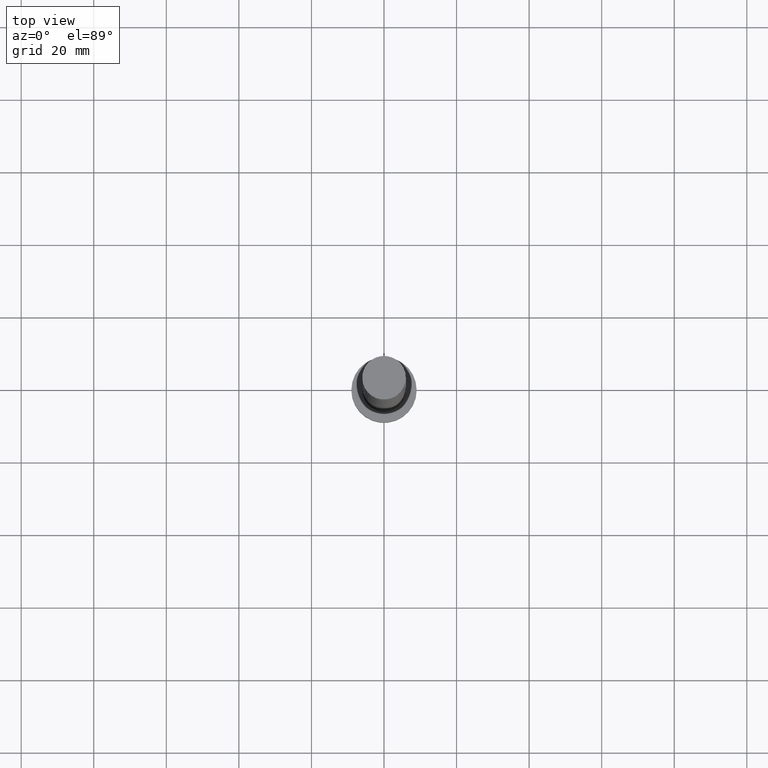
[diagram: clean part render]
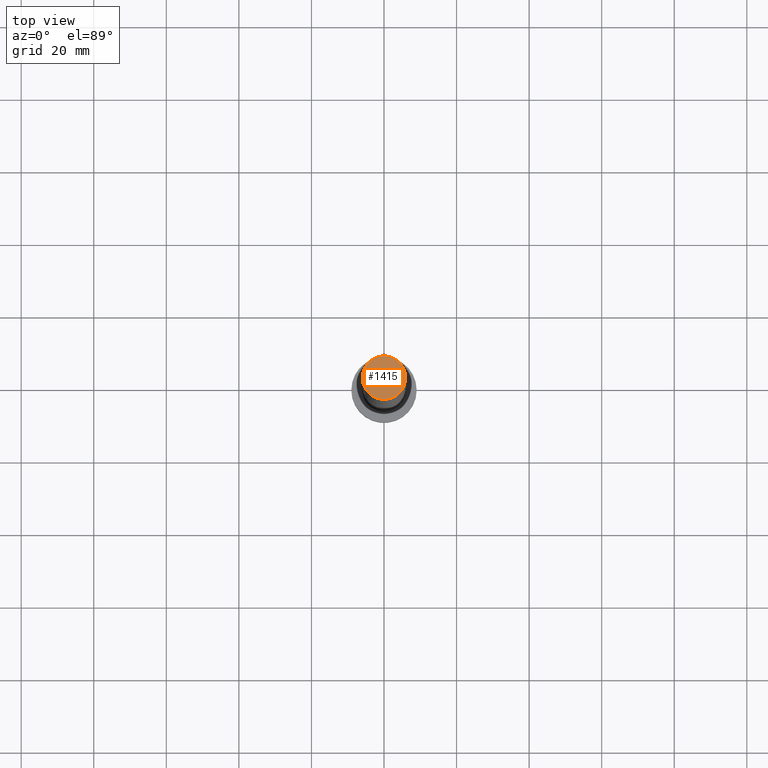
[diagram: same view with one face highlighted and labeled with its STEP entity id]
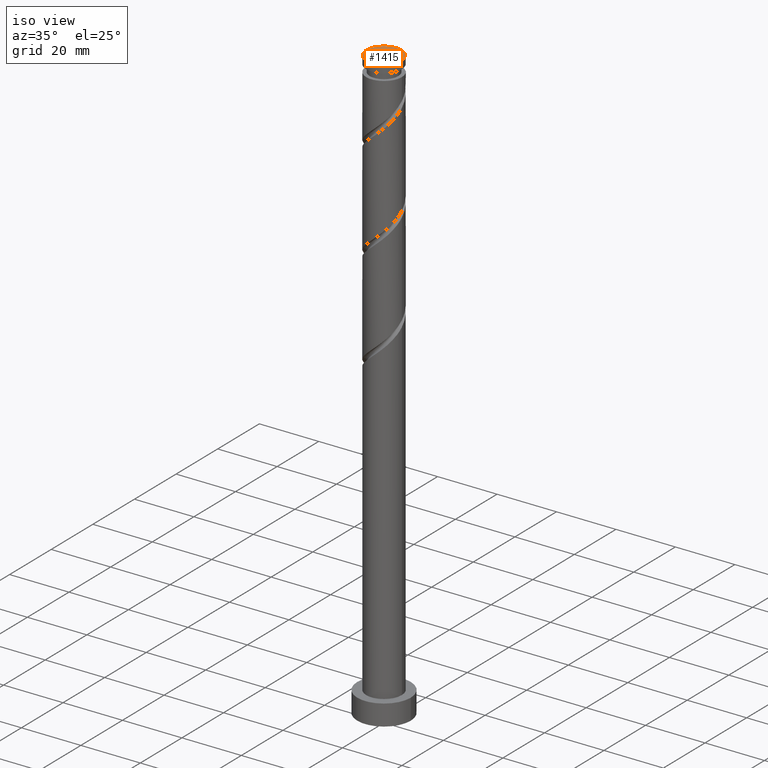
[diagram: same view with one face highlighted and labeled with its STEP entity id]
A machine part, top view. The second image highlights one B-rep face of the part: STEP entity #1415.
A second angle (iso view) of the same face is appended — the face is thin or edge-on in the first view.
In plain terms, the highlighted planar face has unit normal (0, 0, 1).
Its self-contained STEP definition (entity closure, byte-faithful):
#161 = DIRECTION ( 'NONE',  ( 0.000000000000000000, 0.000000000000000000, 1.000000000000000000 ) ) ;
#246 = DIRECTION ( 'NONE',  ( 0.000000000000000000, 0.000000000000000000, 1.000000000000000000 ) ) ;
#299 = DIRECTION ( 'NONE',  ( 1.000000000000000000, 0.000000000000000000, 0.000000000000000000 ) ) ;
#391 = FACE_OUTER_BOUND ( 'NONE', #1365, .T. ) ;
#411 = CARTESIAN_POINT ( 'NONE',  ( -6.000000000000000888, 0.000000000000000000, 200.0000000000000000 ) ) ;
#413 = ORIENTED_EDGE ( 'NONE', *, *, #1479, .T. ) ;
#417 = PLANE ( 'NONE',  #1180 ) ;
#695 = CIRCLE ( 'NONE', #1380, 6.000000000000000888 ) ;
#749 = VERTEX_POINT ( 'NONE', #411 ) ;
#774 = CARTESIAN_POINT ( 'NONE',  ( 0.000000000000000000, 0.000000000000000000, 200.0000000000000000 ) ) ;
#984 = AXIS2_PLACEMENT_3D ( 'NONE', #1262, #161, #299 ) ;
#1029 = EDGE_CURVE ( 'NONE', #749, #1202, #1095, .T. ) ;
#1081 = DIRECTION ( 'NONE',  ( 1.000000000000000000, 0.000000000000000000, -0.000000000000000000 ) ) ;
#1095 = CIRCLE ( 'NONE', #984, 6.000000000000000888 ) ;
#1180 = AXIS2_PLACEMENT_3D ( 'NONE', #1487, #1463, #1081 ) ;
#1202 = VERTEX_POINT ( 'NONE', #1507 ) ;
#1262 = CARTESIAN_POINT ( 'NONE',  ( 0.000000000000000000, 0.000000000000000000, 200.0000000000000000 ) ) ;
#1329 = DIRECTION ( 'NONE',  ( 1.000000000000000000, 0.000000000000000000, 0.000000000000000000 ) ) ;
#1365 = EDGE_LOOP ( 'NONE', ( #1634, #413 ) ) ;
#1380 = AXIS2_PLACEMENT_3D ( 'NONE', #774, #246, #1329 ) ;
#1415 = ADVANCED_FACE ( 'NONE', ( #391 ), #417, .T. ) ;
#1463 = DIRECTION ( 'NONE',  ( 0.000000000000000000, 0.000000000000000000, 1.000000000000000000 ) ) ;
#1479 = EDGE_CURVE ( 'NONE', #1202, #749, #695, .T. ) ;
#1487 = CARTESIAN_POINT ( 'NONE',  ( 0.000000000000000000, 0.000000000000000000, 200.0000000000000000 ) ) ;
#1507 = CARTESIAN_POINT ( 'NONE',  ( 6.000000000000000888, 7.347880794884120722E-16, 200.0000000000000000 ) ) ;
#1634 = ORIENTED_EDGE ( 'NONE', *, *, #1029, .T. ) ;